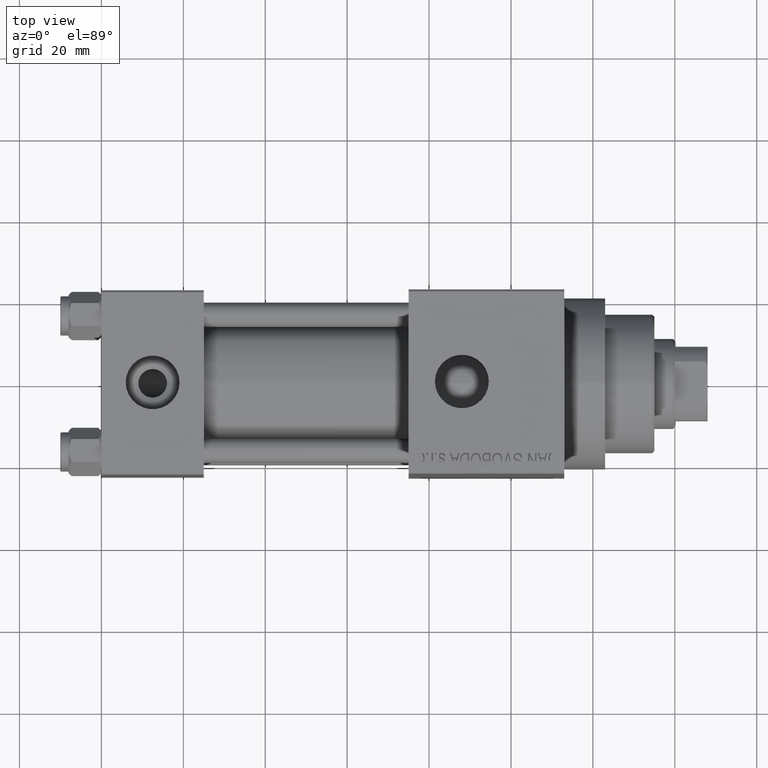
[diagram: clean part render]
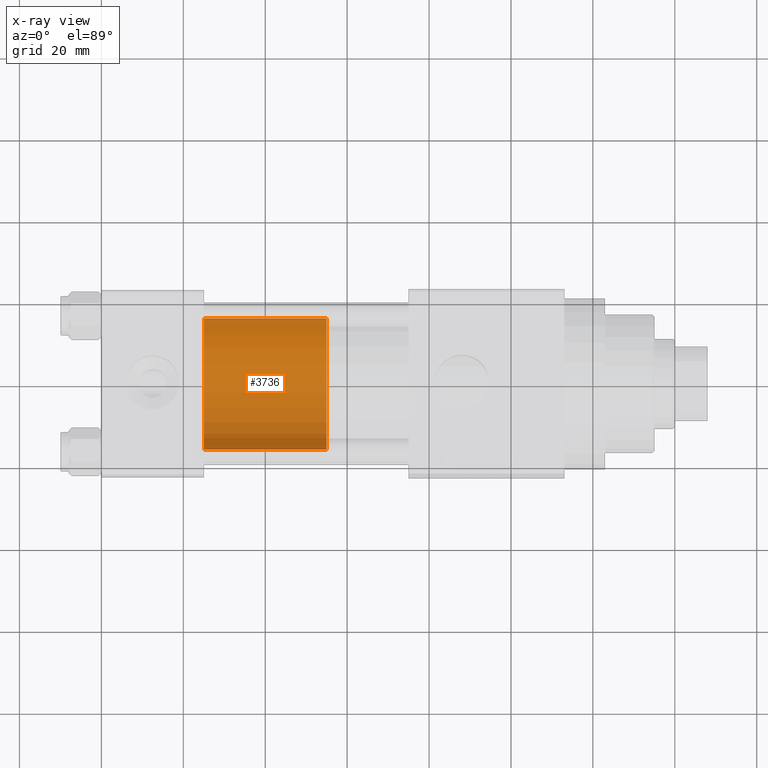
[diagram: x-ray — body ghosted, one internal face saturated and labeled with its STEP entity id]
A machine part, top view, then the same camera in x-ray: the body is ghosted and one INTERNAL B-rep face — a face not visible from any outside direction — is saturated and labeled: STEP entity #3736.
In plain terms, the highlighted cylindrical surface (partial cylindrical patch) has radius 16 mm, axis along (-1, 0, 0).
Its self-contained STEP definition (entity closure, byte-faithful):
#2517 = CARTESIAN_POINT ( 'NONE',  ( 0.000000000000000000, 0.000000000000000000, 0.000000000000000000 ) ) ;
#2692 = DIRECTION ( 'NONE',  ( -1.000000000000000000, 0.000000000000000000, 0.000000000000000000 ) ) ;
#3736 = ADVANCED_FACE ( 'NONE', ( #5782 ), #35598, .T. ) ;
#4496 = CARTESIAN_POINT ( 'NONE',  ( -16.00000000000000000, 0.000000000000000000, 30.00000000000000000 ) ) ;
#4984 = DIRECTION ( 'NONE',  ( -0.000000000000000000, -0.000000000000000000, -1.000000000000000000 ) ) ;
#5447 = CARTESIAN_POINT ( 'NONE',  ( 0.000000000000000000, 0.000000000000000000, 30.00000000000000000 ) ) ;
#5782 = FACE_OUTER_BOUND ( 'NONE', #44753, .T. ) ;
#7509 = VERTEX_POINT ( 'NONE', #19431 ) ;
#9168 = AXIS2_PLACEMENT_3D ( 'NONE', #2517, #42108, #20134 ) ;
#9600 = EDGE_CURVE ( 'NONE', #26680, #20822, #33381, .T. ) ;
#12446 = AXIS2_PLACEMENT_3D ( 'NONE', #28422, #20554, #2692 ) ;
#15240 = CIRCLE ( 'NONE', #9168, 16.00000000000000000 ) ;
#16562 = CARTESIAN_POINT ( 'NONE',  ( -16.00000000000000000, 0.000000000000000000, 30.00000000000000000 ) ) ;
#16944 = ORIENTED_EDGE ( 'NONE', *, *, #9600, .T. ) ;
#18119 = ORIENTED_EDGE ( 'NONE', *, *, #21544, .T. ) ;
#18290 = VECTOR ( 'NONE', #31604, 1000.000000000000000 ) ;
#19431 = CARTESIAN_POINT ( 'NONE',  ( -16.00000000000000000, 0.000000000000000000, 0.000000000000000000 ) ) ;
#19741 = DIRECTION ( 'NONE',  ( 1.000000000000000000, 0.000000000000000000, 0.000000000000000000 ) ) ;
#19979 = DIRECTION ( 'NONE',  ( 0.000000000000000000, 0.000000000000000000, 1.000000000000000000 ) ) ;
#20134 = DIRECTION ( 'NONE',  ( 1.000000000000000000, 0.000000000000000000, 0.000000000000000000 ) ) ;
#20554 = DIRECTION ( 'NONE',  ( -0.000000000000000000, -0.000000000000000000, -1.000000000000000000 ) ) ;
#20822 = VERTEX_POINT ( 'NONE', #36291 ) ;
#21192 = ORIENTED_EDGE ( 'NONE', *, *, #46293, .F. ) ;
#21544 = EDGE_CURVE ( 'NONE', #20822, #7509, #15240, .T. ) ;
#21583 = EDGE_CURVE ( 'NONE', #37559, #7509, #41871, .T. ) ;
#25657 = VECTOR ( 'NONE', #4984, 1000.000000000000000 ) ;
#26680 = VERTEX_POINT ( 'NONE', #37066 ) ;
#28422 = CARTESIAN_POINT ( 'NONE',  ( 0.000000000000000000, 0.000000000000000000, 30.00000000000000000 ) ) ;
#31604 = DIRECTION ( 'NONE',  ( -0.000000000000000000, -0.000000000000000000, -1.000000000000000000 ) ) ;
#33381 = LINE ( 'NONE', #37673, #25657 ) ;
#35598 = CYLINDRICAL_SURFACE ( 'NONE', #12446, 16.00000000000000000 ) ;
#36291 = CARTESIAN_POINT ( 'NONE',  ( 16.00000000000000000, 1.959434878635765131E-15, 0.000000000000000000 ) ) ;
#36521 = ORIENTED_EDGE ( 'NONE', *, *, #21583, .F. ) ;
#37066 = CARTESIAN_POINT ( 'NONE',  ( 16.00000000000000000, 1.959434878635765131E-15, 30.00000000000000000 ) ) ;
#37559 = VERTEX_POINT ( 'NONE', #4496 ) ;
#37673 = CARTESIAN_POINT ( 'NONE',  ( 16.00000000000000000, 1.959434878635765131E-15, 30.00000000000000000 ) ) ;
#41871 = LINE ( 'NONE', #16562, #18290 ) ;
#42108 = DIRECTION ( 'NONE',  ( 0.000000000000000000, 0.000000000000000000, 1.000000000000000000 ) ) ;
#43990 = AXIS2_PLACEMENT_3D ( 'NONE', #5447, #19979, #19741 ) ;
#44753 = EDGE_LOOP ( 'NONE', ( #21192, #16944, #18119, #36521 ) ) ;
#46290 = CIRCLE ( 'NONE', #43990, 16.00000000000000000 ) ;
#46293 = EDGE_CURVE ( 'NONE', #26680, #37559, #46290, .T. ) ;